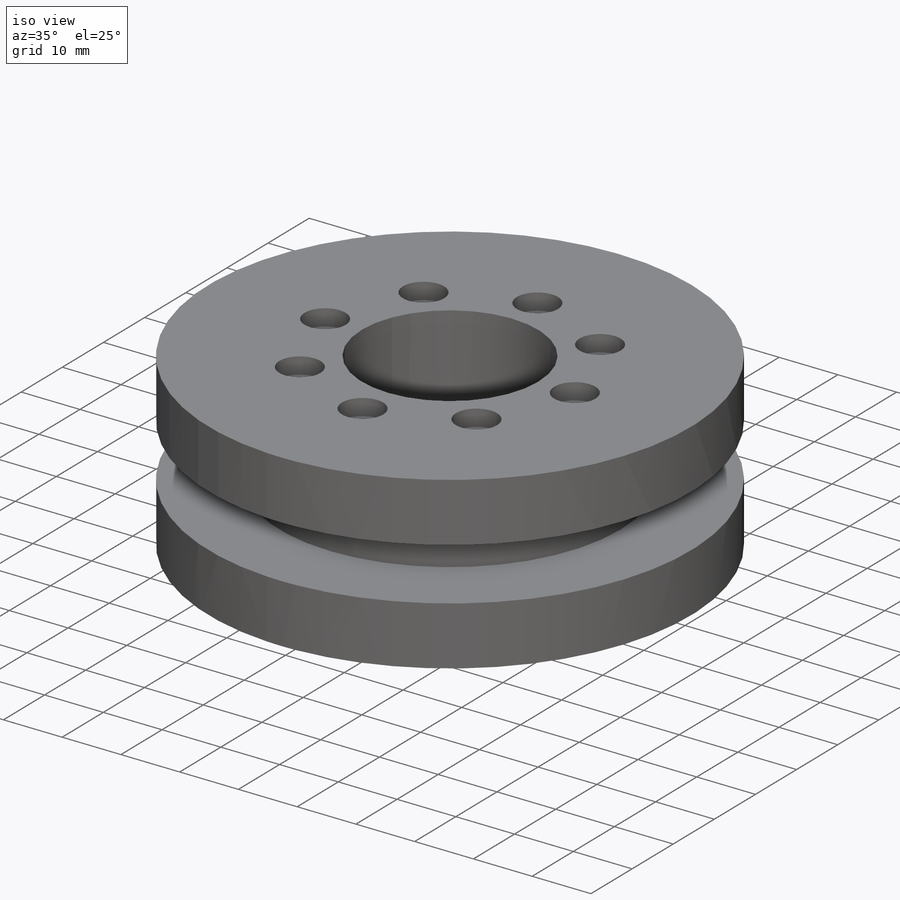
[diagram: iso view]
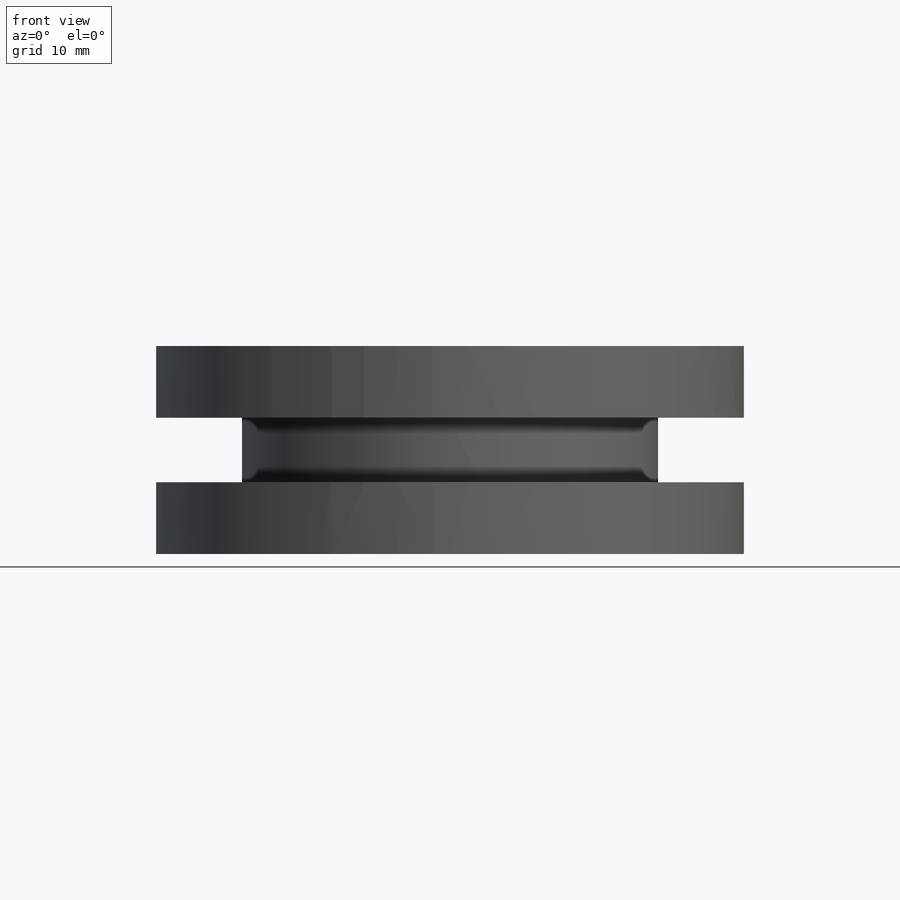
[diagram: front view]
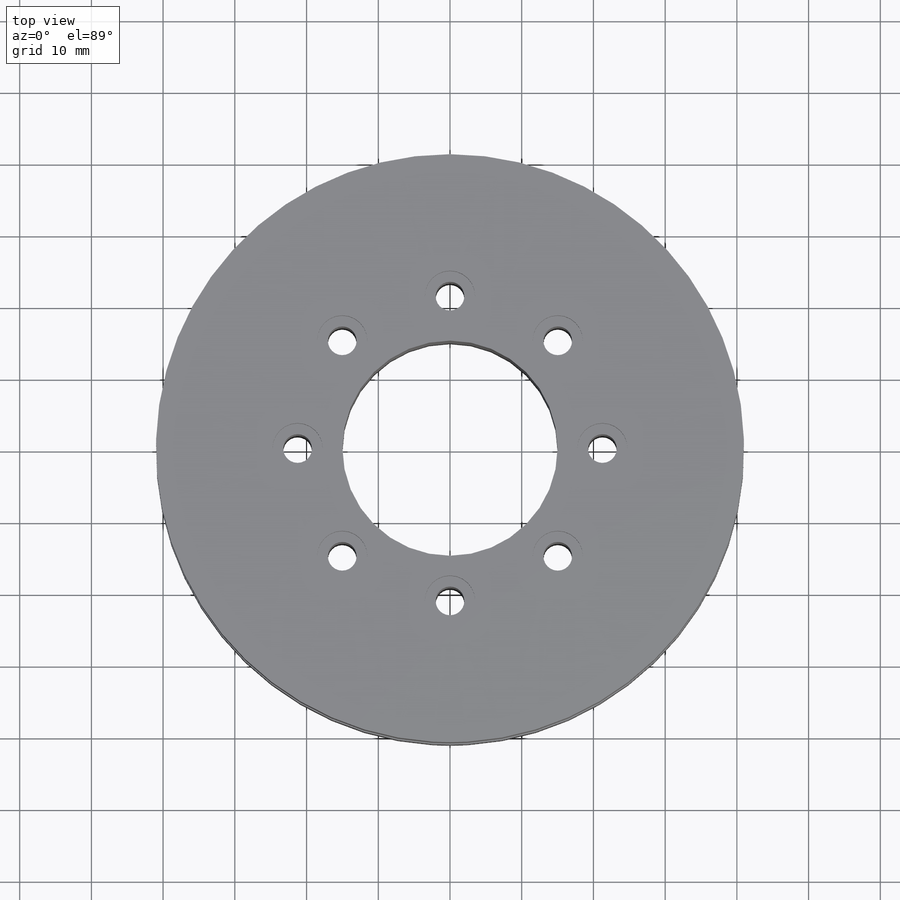
[diagram: top view]
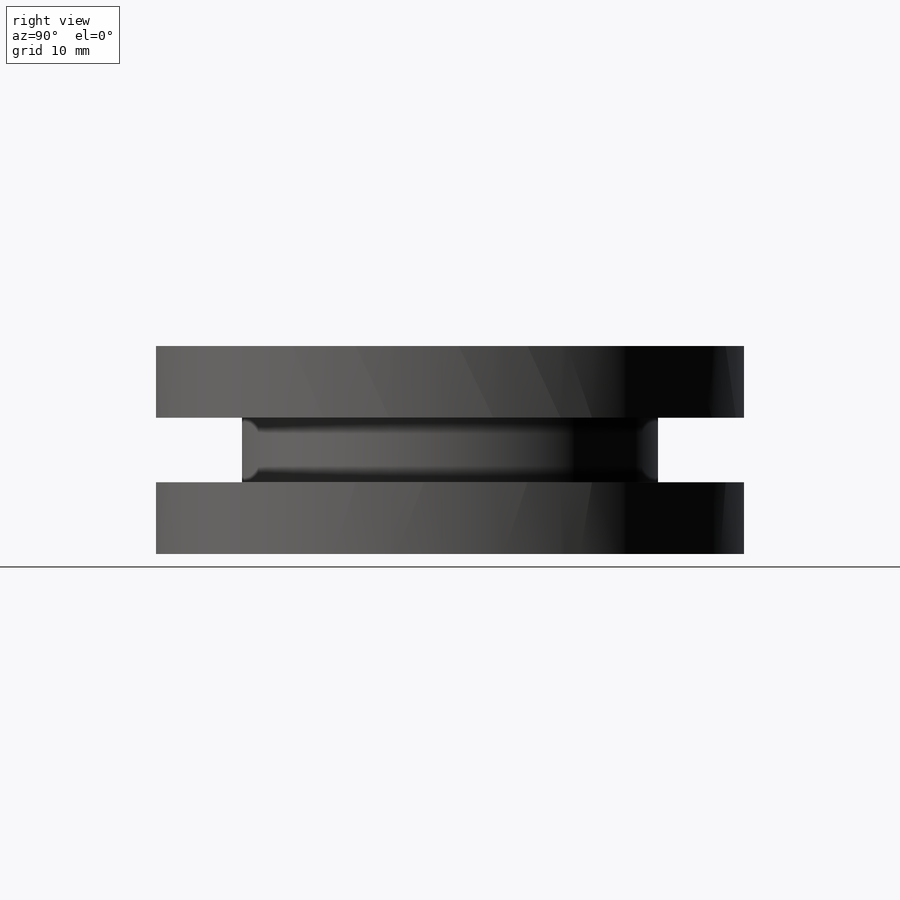
[diagram: right view]
SOLIDWORKS PART (.sldprt)
format: sldprt  version: not decoded by parser v0  size: 226,304 bytes
history: native  units: mm
features: sketch x5, material x1, extrude x1, cut_revolve x1, hole x1, pattern_circular x1 (+13 scaffold rows collapsed)
feature tree (23):
  scaffold x13  (default folders/planes/origin — collapsed)
  material  "Material <not specified>"
  sketch  "Sketch1"  dims[D1=82.0mm D2=30.0mm]
  extrude  "Boss-Extrude1"  Depth=29mm
  sketch  "Sketch3"  dims[D1=9.0mm D2=29.0mm]
  cut_revolve  "Cut-Revolve1"  Angle=360deg
  sketch  "Sketch4"  dims[D1=42.5mm]
  hole  "Hole1"  Diameter=4mm Depth=29mm
  sketch  "3DSketch1"
  sketch  "Sketch5"  dims[Diameter=4.0mm Depth=29.0mm C-Bore Diameter=7.0mm C-Bore Depth=2.8mm]
  pattern_circular  "CirPattern1"  Count=8  [1 undecoded]
decode coverage: 8 of 9 modeling features carry decoded parameters
note: 1 parameter value undecoded
note: suppression state not decoded; provenance and decode notes live in map.json
